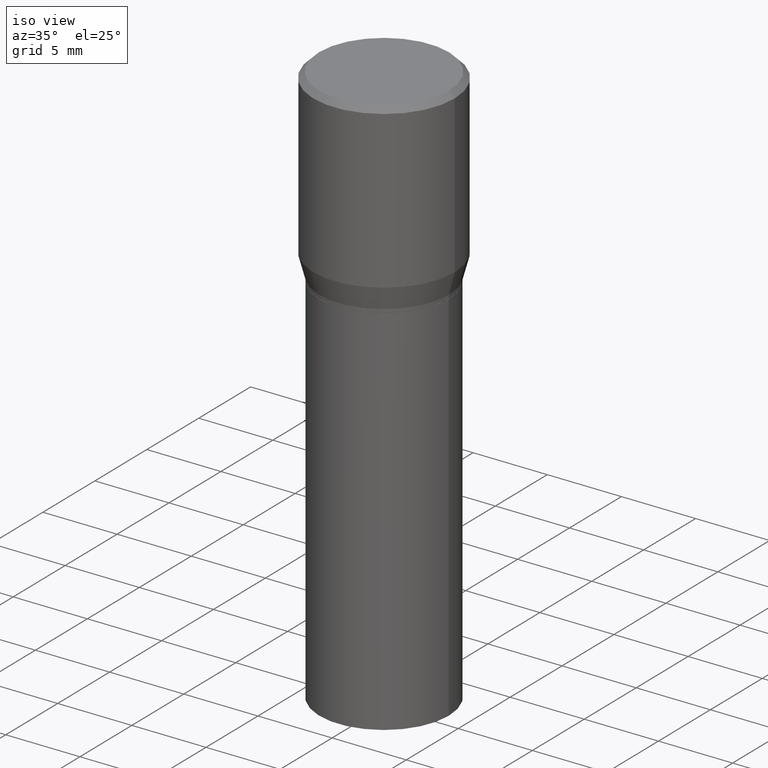
[diagram: clean part render]
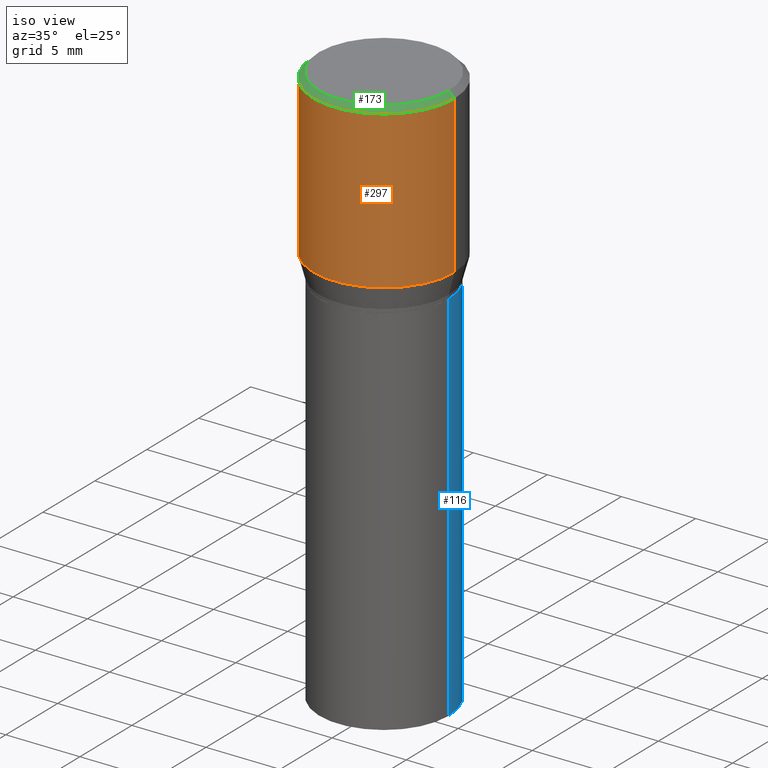
[diagram: same view with three faces highlighted in distinct colors, each labeled with its STEP entity id]
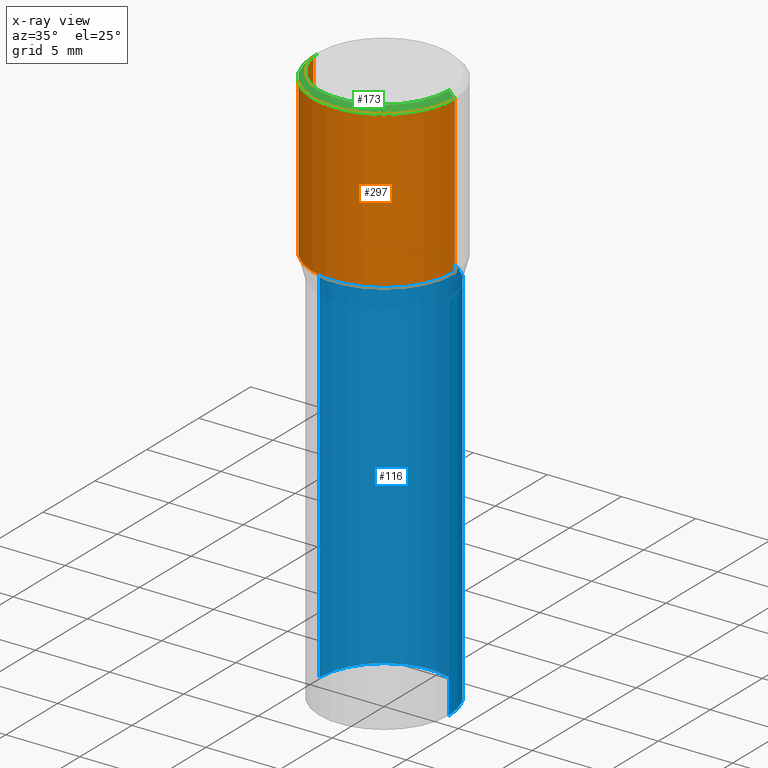
[diagram: x-ray of the same camera — body ghosted, the three highlighted faces saturated]
A machine part, iso view with three faces highlighted in distinct colors.
The next image is the same camera in x-ray (body ghosted, the three faces saturated) — at least one of them is partly hidden behind the body in this view.
Their STEP definitions:

[orange] entity #297 — the highlighted cylindrical surface (partial cylindrical patch) has radius 4.7625 mm, axis along (-0, 0, 1).
#9 = ORIENTED_EDGE ( 'NONE', *, *, #288, .F. ) ;
#26 = CARTESIAN_POINT ( 'NONE',  ( 0.1875000000000000278, -1.309305502066175008E-15, 9.142831454617381013E-30 ) ) ;
#31 = VERTEX_POINT ( 'NONE', #187 ) ;
#35 = DIRECTION ( 'NONE',  ( 1.000000000000000000, -6.982962677686265922E-15, 0.000000000000000000 ) ) ;
#37 = EDGE_CURVE ( 'NONE', #352, #407, #404, .T. ) ;
#39 = CARTESIAN_POINT ( 'NONE',  ( 0.1875000000000000278, -2.816857340395553661E-15, -0.4317800074019257361 ) ) ;
#78 = EDGE_LOOP ( 'NONE', ( #444, #331, #367, #9 ) ) ;
#84 = CARTESIAN_POINT ( 'NONE',  ( 1.055904539235796751E-29, -1.507551838329378850E-15, -0.4317800074019257361 ) ) ;
#135 = CARTESIAN_POINT ( 'NONE',  ( 3.668203209277705088E-31, -5.237222008264718399E-17, -0.01499999999999999944 ) ) ;
#167 = DIRECTION ( 'NONE',  ( -2.445468806185136597E-29, 3.491481338843145583E-15, 1.000000000000000000 ) ) ;
#172 = CARTESIAN_POINT ( 'NONE',  ( -0.1875000000000000278, 1.332267629550188046E-15, -9.223003294227947991E-30 ) ) ;
#187 = CARTESIAN_POINT ( 'NONE',  ( 0.1875000000000000278, -1.361677722148822285E-15, -0.01499999999999999944 ) ) ;
#196 = AXIS2_PLACEMENT_3D ( 'NONE', #135, #353, #35 ) ;
#200 = CARTESIAN_POINT ( 'NONE',  ( 0.000000000000000000, 0.000000000000000000, 0.000000000000000000 ) ) ;
#203 = VERTEX_POINT ( 'NONE', #378 ) ;
#234 = AXIS2_PLACEMENT_3D ( 'NONE', #200, #167, #423 ) ;
#238 = DIRECTION ( 'NONE',  ( -2.445468806185136877E-29, 3.491481338843145188E-15, 1.000000000000000000 ) ) ;
#251 = DIRECTION ( 'NONE',  ( -2.445468806185136597E-29, 3.491481338843145583E-15, 1.000000000000000000 ) ) ;
#271 = LINE ( 'NONE', #26, #293 ) ;
#275 = CYLINDRICAL_SURFACE ( 'NONE', #234, 0.1875000000000000278 ) ;
#283 = VECTOR ( 'NONE', #238, 39.37007874015748143 ) ;
#288 = EDGE_CURVE ( 'NONE', #203, #31, #347, .T. ) ;
#293 = VECTOR ( 'NONE', #384, 39.37007874015748143 ) ;
#297 = ADVANCED_FACE ( 'NONE', ( #345 ), #275, .T. ) ;
#303 = EDGE_CURVE ( 'NONE', #407, #31, #271, .T. ) ;
#313 = CARTESIAN_POINT ( 'NONE',  ( -0.1875000000000000278, -1.752842087791908777E-16, -0.4317800074019257361 ) ) ;
#331 = ORIENTED_EDGE ( 'NONE', *, *, #37, .T. ) ;
#345 = FACE_OUTER_BOUND ( 'NONE', #78, .T. ) ;
#347 = CIRCLE ( 'NONE', #196, 0.1875000000000000278 ) ;
#352 = VERTEX_POINT ( 'NONE', #313 ) ;
#353 = DIRECTION ( 'NONE',  ( -2.445468806185136597E-29, 3.491481338843145583E-15, 1.000000000000000000 ) ) ;
#360 = DIRECTION ( 'NONE',  ( 1.000000000000000000, -6.982962677686265922E-15, 0.000000000000000000 ) ) ;
#367 = ORIENTED_EDGE ( 'NONE', *, *, #303, .T. ) ;
#376 = EDGE_CURVE ( 'NONE', #352, #203, #426, .T. ) ;
#378 = CARTESIAN_POINT ( 'NONE',  ( -0.1875000000000000278, 5.523056003441748841E-16, -0.01499999999999999944 ) ) ;
#384 = DIRECTION ( 'NONE',  ( -2.445468806185136877E-29, 3.491481338843145188E-15, 1.000000000000000000 ) ) ;
#404 = CIRCLE ( 'NONE', #454, 0.1875000000000000278 ) ;
#407 = VERTEX_POINT ( 'NONE', #39 ) ;
#423 = DIRECTION ( 'NONE',  ( 1.000000000000000000, -6.982962677686265922E-15, 4.876176775795935793E-29 ) ) ;
#426 = LINE ( 'NONE', #172, #283 ) ;
#444 = ORIENTED_EDGE ( 'NONE', *, *, #376, .F. ) ;
#454 = AXIS2_PLACEMENT_3D ( 'NONE', #84, #251, #360 ) ;

[blue] entity #116 — the highlighted cylindrical surface (partial cylindrical patch) has radius 4.3663 mm, axis along (-0, 0, 1).
#7 = DIRECTION ( 'NONE',  ( -2.445468806185136877E-29, 3.491481338843145188E-15, 1.000000000000000000 ) ) ;
#17 = DIRECTION ( 'NONE',  ( 1.000000000000000000, -6.982962677686266711E-15, 0.000000000000000000 ) ) ;
#19 = DIRECTION ( 'NONE',  ( -2.445468806185136877E-29, 3.491481338843145188E-15, 1.000000000000000000 ) ) ;
#22 = CARTESIAN_POINT ( 'NONE',  ( 0.000000000000000000, 0.000000000000000000, 0.000000000000000000 ) ) ;
#50 = AXIS2_PLACEMENT_3D ( 'NONE', #373, #198, #17 ) ;
#67 = DIRECTION ( 'NONE',  ( 1.000000000000000000, -6.982962677686268288E-15, 0.000000000000000000 ) ) ;
#70 = VECTOR ( 'NONE', #19, 39.37007874015748143 ) ;
#87 = CIRCLE ( 'NONE', #145, 0.1718999999999999695 ) ;
#94 = CARTESIAN_POINT ( 'NONE',  ( 0.1718999999999999695, -2.946111953715842230E-15, -0.5000000000000001110 ) ) ;
#108 = CARTESIAN_POINT ( 'NONE',  ( -0.1718999999999999695, -2.270058376071533777E-15, -0.5000000000000001110 ) ) ;
#111 = EDGE_LOOP ( 'NONE', ( #290, #399, #409, #435 ) ) ;
#115 = VERTEX_POINT ( 'NONE', #108 ) ;
#116 = ADVANCED_FACE ( 'NONE', ( #329 ), #128, .T. ) ;
#121 = DIRECTION ( 'NONE',  ( -2.445468806185136597E-29, 3.491481338843145583E-15, 1.000000000000000000 ) ) ;
#128 = CYLINDRICAL_SURFACE ( 'NONE', #421, 0.1718999999999999695 ) ;
#129 = DIRECTION ( 'NONE',  ( -2.445468806185136597E-29, 3.491481338843145583E-15, 1.000000000000000000 ) ) ;
#138 = VERTEX_POINT ( 'NONE', #159 ) ;
#145 = AXIS2_PLACEMENT_3D ( 'NONE', #315, #129, #67 ) ;
#159 = CARTESIAN_POINT ( 'NONE',  ( 0.1718999999999999695, -6.437593292558987418E-15, -1.500000000000000222 ) ) ;
#166 = VECTOR ( 'NONE', #7, 39.37007874015748143 ) ;
#194 = CARTESIAN_POINT ( 'NONE',  ( 0.1718999999999999695, -1.200371284294269044E-15, 8.382147877593213079E-30 ) ) ;
#198 = DIRECTION ( 'NONE',  ( -2.445468806185136597E-29, 3.491481338843145583E-15, 1.000000000000000000 ) ) ;
#202 = LINE ( 'NONE', #461, #166 ) ;
#210 = VERTEX_POINT ( 'NONE', #94 ) ;
#240 = EDGE_CURVE ( 'NONE', #138, #210, #451, .T. ) ;
#262 = EDGE_CURVE ( 'NONE', #210, #115, #324, .T. ) ;
#273 = VERTEX_POINT ( 'NONE', #414 ) ;
#290 = ORIENTED_EDGE ( 'NONE', *, *, #400, .T. ) ;
#315 = CARTESIAN_POINT ( 'NONE',  ( 3.668203209277704895E-29, -5.237222008264718177E-15, -1.500000000000000222 ) ) ;
#324 = CIRCLE ( 'NONE', #50, 0.1718999999999999695 ) ;
#329 = FACE_OUTER_BOUND ( 'NONE', #111, .T. ) ;
#373 = CARTESIAN_POINT ( 'NONE',  ( 1.222734403092568719E-29, -1.745740669421573186E-15, -0.5000000000000001110 ) ) ;
#380 = DIRECTION ( 'NONE',  ( 1.000000000000000000, -6.982962677686266711E-15, 4.876176775795936353E-29 ) ) ;
#399 = ORIENTED_EDGE ( 'NONE', *, *, #429, .T. ) ;
#400 = EDGE_CURVE ( 'NONE', #138, #273, #87, .T. ) ;
#409 = ORIENTED_EDGE ( 'NONE', *, *, #262, .F. ) ;
#414 = CARTESIAN_POINT ( 'NONE',  ( -0.1718999999999999695, -2.270058376071533777E-15, -1.500000000000000222 ) ) ;
#421 = AXIS2_PLACEMENT_3D ( 'NONE', #22, #121, #380 ) ;
#429 = EDGE_CURVE ( 'NONE', #273, #115, #202, .T. ) ;
#435 = ORIENTED_EDGE ( 'NONE', *, *, #240, .F. ) ;
#451 = LINE ( 'NONE', #194, #70 ) ;
#461 = CARTESIAN_POINT ( 'NONE',  ( -0.1718999999999999695, 1.221422962771612003E-15, -8.455649420148183180E-30 ) ) ;

[green] entity #173 — the highlighted conical surface has half-angle 45 deg.
#3 = EDGE_CURVE ( 'NONE', #219, #31, #153, .T. ) ;
#31 = VERTEX_POINT ( 'NONE', #187 ) ;
#35 = DIRECTION ( 'NONE',  ( 1.000000000000000000, -6.982962677686265922E-15, 0.000000000000000000 ) ) ;
#51 = DIRECTION ( 'NONE',  ( 2.445468806185136597E-29, -3.491481338843145583E-15, -1.000000000000000000 ) ) ;
#57 = CARTESIAN_POINT ( 'NONE',  ( 0.1725000000000000144, -1.261075749640199308E-15, -2.636744989014362231E-17 ) ) ;
#99 = CONICAL_SURFACE ( 'NONE', #118, 0.1875000000000000278, 0.7853981633974495002 ) ;
#102 = ORIENTED_EDGE ( 'NONE', *, *, #3, .F. ) ;
#105 = CIRCLE ( 'NONE', #274, 0.1725000000000000144 ) ;
#118 = AXIS2_PLACEMENT_3D ( 'NONE', #420, #51, #268 ) ;
#120 = DIRECTION ( 'NONE',  ( 1.000000000000000000, -6.982962677686266711E-15, 4.876912640186324808E-29 ) ) ;
#130 = VERTEX_POINT ( 'NONE', #382 ) ;
#133 = ORIENTED_EDGE ( 'NONE', *, *, #288, .T. ) ;
#135 = CARTESIAN_POINT ( 'NONE',  ( 3.668203209277705088E-31, -5.237222008264718399E-17, -0.01499999999999999944 ) ) ;
#147 = EDGE_CURVE ( 'NONE', #130, #203, #412, .T. ) ;
#153 = LINE ( 'NONE', #188, #419 ) ;
#162 = FACE_OUTER_BOUND ( 'NONE', #395, .T. ) ;
#173 = ADVANCED_FACE ( 'NONE', ( #162 ), #99, .T. ) ;
#187 = CARTESIAN_POINT ( 'NONE',  ( 0.1875000000000000278, -1.361677722148822285E-15, -0.01499999999999999944 ) ) ;
#188 = CARTESIAN_POINT ( 'NONE',  ( 0.1875000000000000278, -1.338715594664809642E-15, -0.01499999999999999944 ) ) ;
#196 = AXIS2_PLACEMENT_3D ( 'NONE', #135, #353, #35 ) ;
#203 = VERTEX_POINT ( 'NONE', #378 ) ;
#219 = VERTEX_POINT ( 'NONE', #57 ) ;
#221 = VECTOR ( 'NONE', #343, 39.37007874015748143 ) ;
#259 = ORIENTED_EDGE ( 'NONE', *, *, #147, .T. ) ;
#268 = DIRECTION ( 'NONE',  ( -1.000000000000000000, 6.982962677686265922E-15, 0.000000000000000000 ) ) ;
#272 = EDGE_CURVE ( 'NONE', #130, #219, #105, .T. ) ;
#274 = AXIS2_PLACEMENT_3D ( 'NONE', #298, #449, #120 ) ;
#288 = EDGE_CURVE ( 'NONE', #203, #31, #347, .T. ) ;
#298 = CARTESIAN_POINT ( 'NONE',  ( 6.448077620501702025E-46, -9.206145924434830208E-32, -2.636744989015224123E-17 ) ) ;
#316 = ORIENTED_EDGE ( 'NONE', *, *, #272, .F. ) ;
#337 = DIRECTION ( 'NONE',  ( 0.7071067811865483499, -7.319954787623257623E-15, -0.7071067811865466846 ) ) ;
#343 = DIRECTION ( 'NONE',  ( -0.7071067811865483499, 2.468850131082265738E-15, -0.7071067811865466846 ) ) ;
#347 = CIRCLE ( 'NONE', #196, 0.1875000000000000278 ) ;
#353 = DIRECTION ( 'NONE',  ( -2.445468806185136597E-29, 3.491481338843145583E-15, 1.000000000000000000 ) ) ;
#375 = CARTESIAN_POINT ( 'NONE',  ( -0.1875000000000000278, 1.256933281983527732E-15, -0.01499999999999999944 ) ) ;
#378 = CARTESIAN_POINT ( 'NONE',  ( -0.1875000000000000278, 5.523056003441748841E-16, -0.01499999999999999944 ) ) ;
#382 = CARTESIAN_POINT ( 'NONE',  ( -0.1725000000000000144, 1.230747171942204192E-15, -2.636744989016075847E-17 ) ) ;
#395 = EDGE_LOOP ( 'NONE', ( #102, #316, #259, #133 ) ) ;
#412 = LINE ( 'NONE', #375, #221 ) ;
#419 = VECTOR ( 'NONE', #337, 39.37007874015748143 ) ;
#420 = CARTESIAN_POINT ( 'NONE',  ( 3.668203209277705088E-31, -5.237222008264718399E-17, -0.01499999999999999944 ) ) ;
#449 = DIRECTION ( 'NONE',  ( -2.445468806185136597E-29, 3.491481338843145583E-15, 1.000000000000000000 ) ) ;